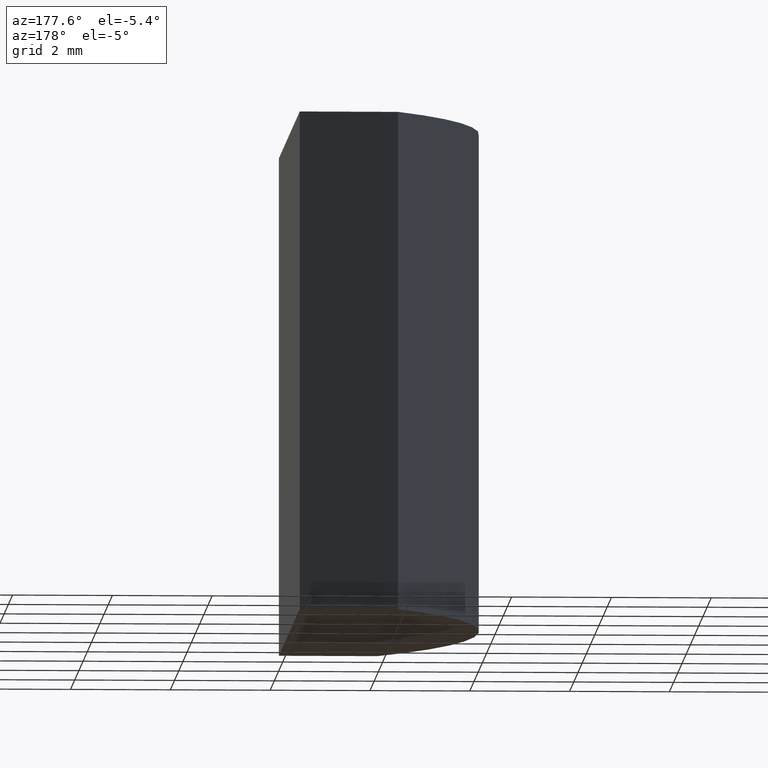
[diagram: clean part render]
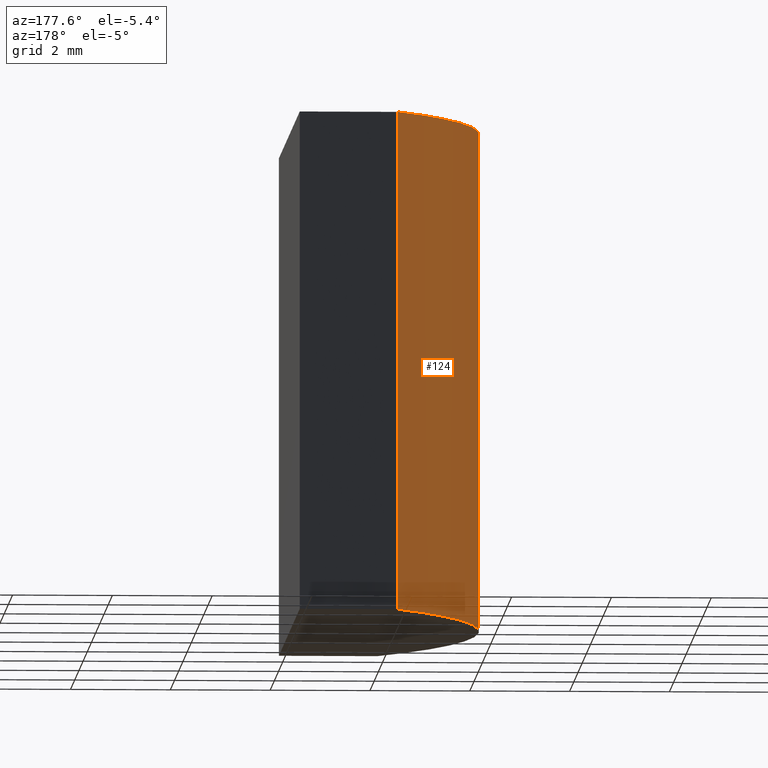
[diagram: same view with one face highlighted and labeled with its STEP entity id]
A machine part, auxiliary view. The second image highlights one B-rep face of the part: STEP entity #124.
In plain terms, the highlighted cylindrical surface (partial cylindrical patch) has radius 7.76 mm, axis along (-0, -0, -1).
Its self-contained STEP definition (entity closure, byte-faithful):
#5 = VECTOR ( 'NONE', #259, 1000.000000000000000 ) ;
#6 = DIRECTION ( 'NONE',  ( 0.000000000000000000, 0.000000000000000000, 1.000000000000000000 ) ) ;
#7 = CARTESIAN_POINT ( 'NONE',  ( 0.000000000000000000, 0.000000000000000000, 10.00000000000000000 ) ) ;
#9 = CARTESIAN_POINT ( 'NONE',  ( -7.759999999999998899, 0.000000000000000000, 10.00000000000000000 ) ) ;
#15 = ORIENTED_EDGE ( 'NONE', *, *, #194, .F. ) ;
#18 = DIRECTION ( 'NONE',  ( -0.000000000000000000, -0.000000000000000000, -1.000000000000000000 ) ) ;
#20 = CARTESIAN_POINT ( 'NONE',  ( -5.934441844015322154, 5.000000000000000000, 0.000000000000000000 ) ) ;
#34 = DIRECTION ( 'NONE',  ( -1.000000000000000000, 0.000000000000000000, 0.000000000000000000 ) ) ;
#51 = ORIENTED_EDGE ( 'NONE', *, *, #196, .F. ) ;
#54 = AXIS2_PLACEMENT_3D ( 'NONE', #7, #233, #235 ) ;
#55 = DIRECTION ( 'NONE',  ( -0.000000000000000000, -0.000000000000000000, -1.000000000000000000 ) ) ;
#87 = VECTOR ( 'NONE', #18, 1000.000000000000000 ) ;
#93 = CIRCLE ( 'NONE', #54, 7.759999999999998899 ) ;
#98 = CYLINDRICAL_SURFACE ( 'NONE', #170, 7.759999999999998899 ) ;
#100 = CARTESIAN_POINT ( 'NONE',  ( 0.000000000000000000, 0.000000000000000000, 10.00000000000000000 ) ) ;
#120 = CARTESIAN_POINT ( 'NONE',  ( -7.759999999999998899, 0.000000000000000000, 0.000000000000000000 ) ) ;
#122 = FACE_OUTER_BOUND ( 'NONE', #183, .T. ) ;
#124 = ADVANCED_FACE ( 'NONE', ( #122 ), #98, .T. ) ;
#125 = LINE ( 'NONE', #141, #87 ) ;
#126 = CIRCLE ( 'NONE', #251, 7.759999999999998899 ) ;
#136 = ORIENTED_EDGE ( 'NONE', *, *, #254, .T. ) ;
#141 = CARTESIAN_POINT ( 'NONE',  ( -7.759999999999998899, 0.000000000000000000, 10.00000000000000000 ) ) ;
#146 = DIRECTION ( 'NONE',  ( 1.000000000000000000, 0.000000000000000000, 0.000000000000000000 ) ) ;
#157 = VERTEX_POINT ( 'NONE', #9 ) ;
#169 = CARTESIAN_POINT ( 'NONE',  ( -5.934441844015322154, 5.000000000000000000, 10.00000000000000000 ) ) ;
#170 = AXIS2_PLACEMENT_3D ( 'NONE', #100, #55, #34 ) ;
#179 = VERTEX_POINT ( 'NONE', #227 ) ;
#182 = VERTEX_POINT ( 'NONE', #20 ) ;
#183 = EDGE_LOOP ( 'NONE', ( #51, #15, #136, #200 ) ) ;
#188 = CARTESIAN_POINT ( 'NONE',  ( 0.000000000000000000, 0.000000000000000000, 0.000000000000000000 ) ) ;
#194 = EDGE_CURVE ( 'NONE', #179, #157, #93, .T. ) ;
#196 = EDGE_CURVE ( 'NONE', #157, #203, #125, .T. ) ;
#200 = ORIENTED_EDGE ( 'NONE', *, *, #248, .T. ) ;
#203 = VERTEX_POINT ( 'NONE', #120 ) ;
#214 = LINE ( 'NONE', #169, #5 ) ;
#227 = CARTESIAN_POINT ( 'NONE',  ( -5.934441844015322154, 5.000000000000000000, 10.00000000000000000 ) ) ;
#233 = DIRECTION ( 'NONE',  ( 0.000000000000000000, 0.000000000000000000, 1.000000000000000000 ) ) ;
#235 = DIRECTION ( 'NONE',  ( 1.000000000000000000, 0.000000000000000000, 0.000000000000000000 ) ) ;
#248 = EDGE_CURVE ( 'NONE', #182, #203, #126, .T. ) ;
#251 = AXIS2_PLACEMENT_3D ( 'NONE', #188, #6, #146 ) ;
#254 = EDGE_CURVE ( 'NONE', #179, #182, #214, .T. ) ;
#259 = DIRECTION ( 'NONE',  ( -0.000000000000000000, -0.000000000000000000, -1.000000000000000000 ) ) ;